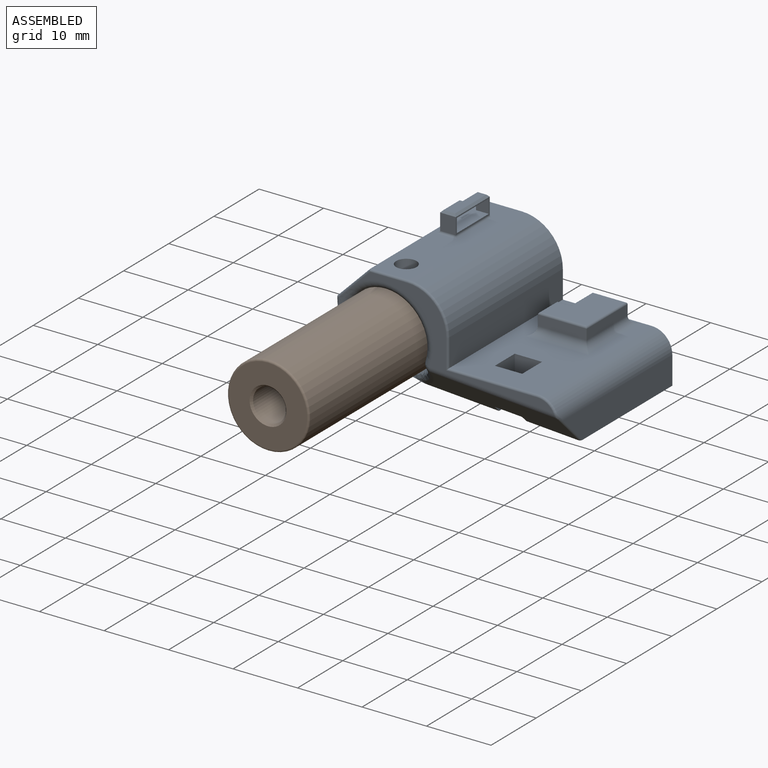
[diagram: assembled view]
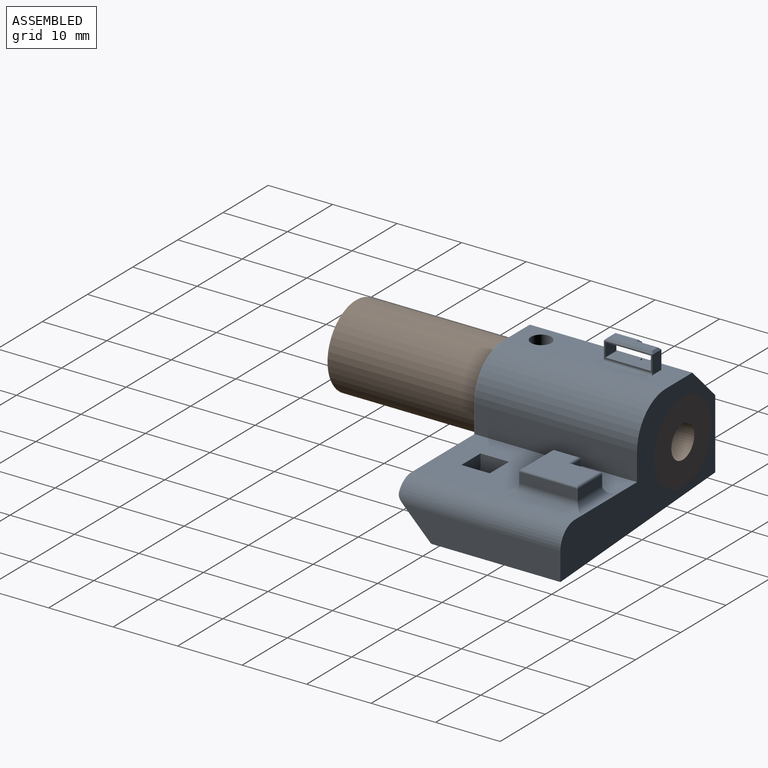
[diagram: assembled view, second angle]
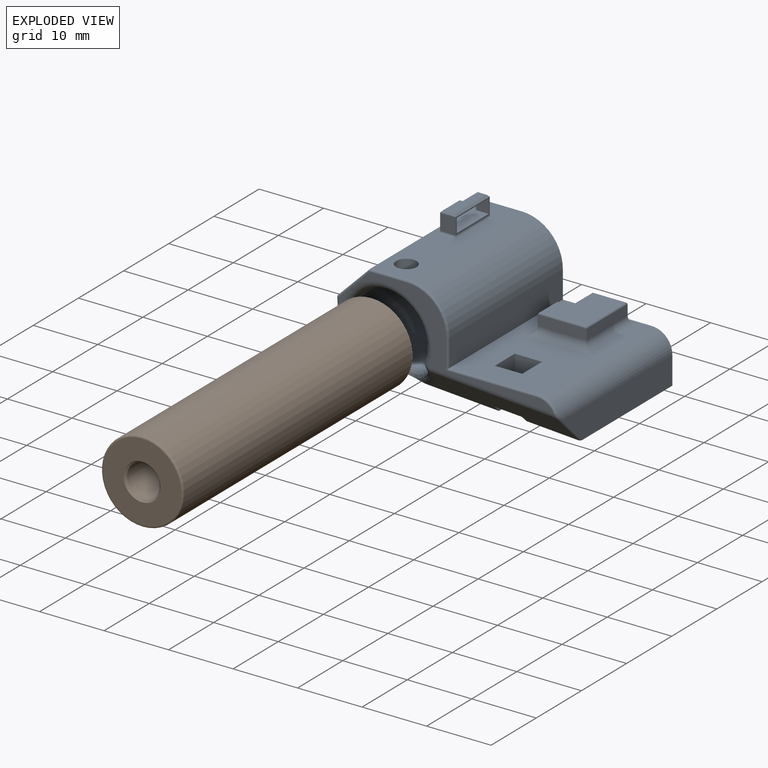
[diagram: exploded view]
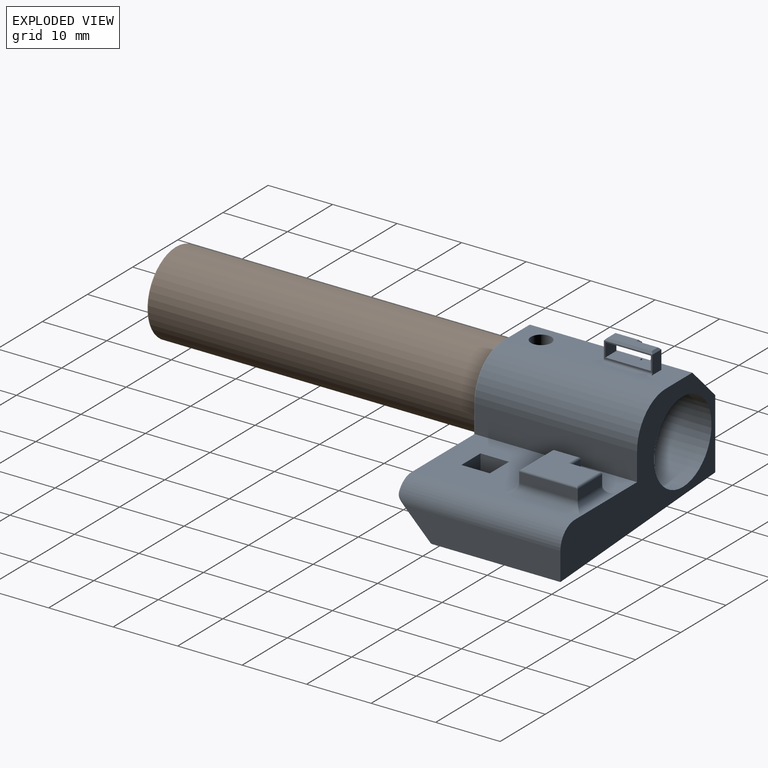
[diagram: exploded view, second angle]
ASSEMBLY  parts=2 mates=2
PART A: 81 faces, bbox 36.5x26.3x21.7 mm
  f0: plane 0.46x0.19mm, normal (0,1,0), area 0.1mm2, adj f1,f3,f76,f78
  f1: plane 4.2x2.54mm, normal (-1,0,0), area 2.2mm2, adj f0,f64,f65,f68,f75,f77,f78,f79
  f2: plane 7.53x2.54mm, normal (1,0,0), area 4.1mm2, adj f65,f66,f70,f71,f77,f78,f79,f80
  f3: plane 3.33x2.86mm, normal (-1,0,0), area 2.9mm2, adj f0,f4,f64,f66,f74,f78,f79,f80
  f4: plane 25.08x5.89mm, normal (0,0,1), area 118.2mm2, adj f3,f14,f15,f17,f50,f63,f64,f66
  f5: cylinder r=6.35mm len=24.13mm, axis (0,-1,0), area 906.8mm2, adj f14,f19,f21,f63
  f6: plane 0.78x0.43mm, normal (0,-1,0), area 0.1mm2, adj f19,f53,f54
  f7: plane 25.08x13.8mm, normal (0,0,1), area 220.4mm2, adj f12,f14,f16,f31,f32,f33,f34,f35
  f8: plane 23.48x6.02mm, normal (-0.05,-0.71,-0.71), area 134.8mm2, adj f10,f21,f23,f43,f44,f59,f60,f62
  f9: plane 25.08x10.83mm, normal (-1,0,0), area 256.5mm2, adj f10,f14,f17,f54,f55,f56,f57,f58
  f10: plane 34.43x20.45mm, normal (-0.07,0,-1), area 680.8mm2, adj f8,f9,f11,f14,f18,f21,f43,f58
  f11: plane 24.18x4.34mm, normal (1,0,0), area 95.6mm2, adj f10,f14,f16,f43
  f12: plane 25.08x4.32mm, normal (1,0,0), area 108.2mm2, adj f7,f14,f15,f48
  f13: plane 30.56x12.21mm, normal (0,-1,0), area 54.7mm2, adj f19,f23,f46,f47,f48,f49,f50,f51
  f14: plane 34.29x18.18mm, normal (0,1,0), area 253mm2, adj f4,f5,f7,f9,f10,f11,f12,f15
  f15: cylinder r=6.35mm len=25.08mm, axis (0,1,0), area 250.2mm2, adj f4,f12,f14,f49
  f16: cylinder r=3.17mm len=25.08mm, axis (0,1,0), area 124.6mm2, adj f7,f11,f14,f44,f45,f46
  f17: plane 25.08x5.08mm, normal (-0.71,0,0.71), area 180.2mm2, adj f4,f9,f14,f51,f52,f53
  f18: plane 2.93x2.76mm, normal (-0.05,-0.71,-0.71), area 4.1mm2, adj f10,f21,f58
  f19: torus R=7.62mm, axis (0,-1,0), area 45.1mm2, adj f5,f6,f13,f20,f22,f52,f55
  f20: sphere r=1.27mm, area 0.4mm2, adj f19,f21,f56
  f21: bspline ~14.73x7.35mm, area 49.1mm2, adj f5,f8,f10,f18,f20,f22,f57
  f22: sphere r=1.27mm, area 1.6mm2, adj f19,f21,f23
  f23: cylinder r=1.27mm len=19.59mm, axis (-1,0,0.07), area 19.4mm2, adj f8,f13,f22,f45
  f24: plane 2.12x1.59mm, normal (0,1,0), area 3.4mm2, adj f25,f29,f33,f39
  f25: plane 4.27x1.59mm, normal (-1,0,0), area 6.8mm2, adj f24,f26,f31,f37
  f26: plane 7.56x1.59mm, normal (0,-1,0), area 12mm2, adj f25,f27,f32,f38
  f27: plane 9.08x1.59mm, normal (1,0,0), area 14.4mm2, adj f26,f28,f34,f40
  f28: plane 5.44x1.59mm, normal (0,1,0), area 8.6mm2, adj f27,f29,f36,f42
  f29: plane 4.81x1.59mm, normal (-1,0,0), area 7.6mm2, adj f24,f28,f35,f41
  f30: plane 8.44x6.92mm, normal (0,0,1), area 48.2mm2, adj f37,f38,f39,f40,f41,f42
  f31: cylinder r=1.27mm len=6.81mm, axis (0,-1,0), area 11mm2, adj f7,f25,f32,f33
  f32: cylinder r=1.27mm len=10.1mm, axis (1,0,0), area 17.6mm2, adj f7,f26,f31,f34
  f33: cylinder r=1.27mm len=3.39mm, axis (-1,0,0), area 4.2mm2, adj f7,f24,f31,f35
  f34: cylinder r=1.27mm len=11.62mm, axis (0,1,0), area 20.6mm2, adj f7,f27,f32,f36
  f35: cylinder r=1.27mm len=6.08mm, axis (0,-1,0), area 9.6mm2, adj f7,f29,f33,f36
  f36: cylinder r=1.27mm len=7.98mm, axis (-1,0,0), area 13.4mm2, adj f7,f28,f34,f35
  f37: cylinder r=0.32mm len=4.27mm, axis (0,1,0), area 2mm2, adj f25,f30,f38,f39
  f38: cylinder r=0.32mm len=7.56mm, axis (-1,0,0), area 3.6mm2, adj f26,f30,f37,f40
  f39: cylinder r=0.32mm len=2.44mm, axis (1,0,0), area 1.1mm2, adj f24,f30,f37,f41
  f40: cylinder r=0.32mm len=9.08mm, axis (0,-1,0), area 4.4mm2, adj f27,f30,f38,f42
  f41: cylinder r=0.32mm len=5.13mm, axis (0,1,0), area 2.4mm2, adj f29,f30,f39,f42
  f42: cylinder r=0.32mm len=5.44mm, axis (1,0,0), area 2.6mm2, adj f28,f30,f40,f41
  f43: cylinder r=0.32mm len=4.57mm, axis (0,-0.71,0.71), area 3.1mm2, adj f8,f10,f11,f44
  f44: bspline ~1.72x1.65mm, area 0.5mm2, adj f8,f16,f43,f45
  f45: bspline ~1.6x0.81mm, area 0.5mm2, adj f16,f23,f44,f46
  f46: torus R=2.86mm, axis (0,-1,0), area 1.7mm2, adj f13,f16,f45,f47
  f47: cylinder r=0.32mm len=14.12mm, axis (1,0,0), area 7mm2, adj f7,f13,f46,f48
  f48: cylinder r=0.32mm len=4.63mm, axis (0,0,-1), area 2.2mm2, adj f12,f13,f47,f49
  f49: torus R=6.03mm, axis (0,-1,0), area 4.9mm2, adj f13,f15,f48,f50
  f50: cylinder r=0.32mm len=5.89mm, axis (1,0,0), area 2.9mm2, adj f4,f13,f49,f51
  f51: cylinder r=0.32mm len=2.44mm, axis (0.71,0,0.71), area 1.5mm2, adj f13,f17,f50,f52
  f52: bspline ~3.01x2.99mm, area 1.8mm2, adj f17,f19,f51,f53
  f53: cylinder r=0.32mm len=0.75mm, axis (0.71,0,0.71), area 0.3mm2, adj f6,f17,f52,f54
  f54: cylinder r=0.32mm len=0.48mm, axis (0,0,1), area 0.2mm2, adj f6,f9,f53,f55
  f55: bspline ~6.54x0.94mm, area 3.2mm2, adj f9,f19,f54,f56
  f56: torus R=0.72mm, axis (-1,0,0), area 0.6mm2, adj f9,f20,f55,f57
  f57: bspline ~3.55x3.42mm, area 1.8mm2, adj f9,f21,f56,f58
  f58: cylinder r=0.32mm len=3.19mm, axis (0,0.71,-0.71), area 2mm2, adj f9,f10,f18,f57
  f59: plane 6.04x4.24mm, normal (0,1,0), area 25mm2, adj f7,f8,f60,f62
  f60: plane 6.96x4.41mm, normal (-1,0,0), area 30.3mm2, adj f7,f8,f10,f59,f61
  f61: plane 6.96x4.24mm, normal (0,-1,0), area 28.9mm2, adj f7,f10,f60,f62
  f62: plane 6.68x4.41mm, normal (1,0,0), area 29mm2, adj f7,f8,f10,f59,f61
  f63: cylinder r=1.59mm len=3.18mm, axis (0,0,1), area 29.9mm2, adj f4,f5
  f64: plane 0.78x0.53mm, normal (0,1,0), area 0.3mm2, adj f1,f3,f4,f68,f79
  f65: plane 2.54x2.43mm, normal (0,-1,0), area 6.2mm2, adj f1,f2,f69,f73
  f66: plane 2.86x2.29mm, normal (0,1,0), area 5.7mm2, adj f2,f3,f4,f70,f72
  f67: plane 6.89x1.8mm, normal (0,0,1), area 10.9mm2, adj f71,f72,f73,f74,f75,f76
  f68: cylinder r=0.32mm len=4.52mm, axis (0,-1,0), area 2.2mm2, adj f1,f4,f64,f69
  f69: cylinder r=0.32mm len=3.07mm, axis (1,0,0), area 1.4mm2, adj f4,f65,f68,f70
  f70: cylinder r=0.32mm len=7.85mm, axis (0,1,0), area 3.8mm2, adj f2,f4,f66,f69
  f71: plane 7.53x0.32mm, normal (0.71,0,0.71), area 3.2mm2, adj f2,f67,f72,f73
  f72: plane 1.97x0.32mm, normal (0,0.71,0.71), area 0.7mm2, adj f66,f67,f71,f74
  f73: plane 2.43x0.32mm, normal (0,-0.71,0.71), area 0.9mm2, adj f65,f67,f71,f75
  f74: plane 3.65x0.32mm, normal (-0.71,0,0.71), area 1.5mm2, adj f3,f67,f72,f76
  f75: plane 4.2x0.32mm, normal (-0.71,0,0.71), area 1.7mm2, adj f1,f67,f73,f76
  f76: plane 0.78x0.32mm, normal (0,0.71,0.71), area 0.2mm2, adj f0,f67,f74,f75
  f77: plane 2.43x2.14mm, normal (0,1,0), area 5.2mm2, adj f1,f2,f78,f79
  f78: plane 7.05x2.43mm, normal (0,0,-1), area 15.7mm2, adj f0,f1,f2,f3,f77,f80
  f79: plane 7.05x2.43mm, normal (0,0,1), area 15.7mm2, adj f1,f2,f3,f64,f77,f80
  f80: plane 2.14x1.97mm, normal (0,-1,0), area 4.2mm2, adj f2,f3,f78,f79
PART B: 6 faces, bbox 13.7x50.8x13.7 mm
  f0: cylinder r=6.35mm len=50.5mm, axis (0,1,0), area 2014.7mm2, adj f2,f4
  f1: plane 12.09x12.09mm, normal (0,-1,0), area 89.2mm2, adj f4,f5
  f2: plane 12.7x12.7mm, normal (0,1,0), area 106.4mm2, adj f0,f3
  f3: cylinder r=2.54mm len=50.48mm, axis (0,-1,0), area 805.7mm2, adj f2,f5
  f4: torus R=6.05mm, axis (0,-1,0), area 18.8mm2, adj f0,f1
  f5: cone r=2.54mm half-angle=45deg, axis (0,-1,0), area 7.6mm2, adj f1,f3
PLACE A at identity
PLACE B t=(-1.27,0,2.43)mm
MATE planar B.f0 <-> A.f14  axis (0,1,0) through (-59.03,0,58.55)mm
MATE cylindrical B.f0 <-> A.f5  axis (0,1,0) through (-59.03,-25.25,58.55)mm
